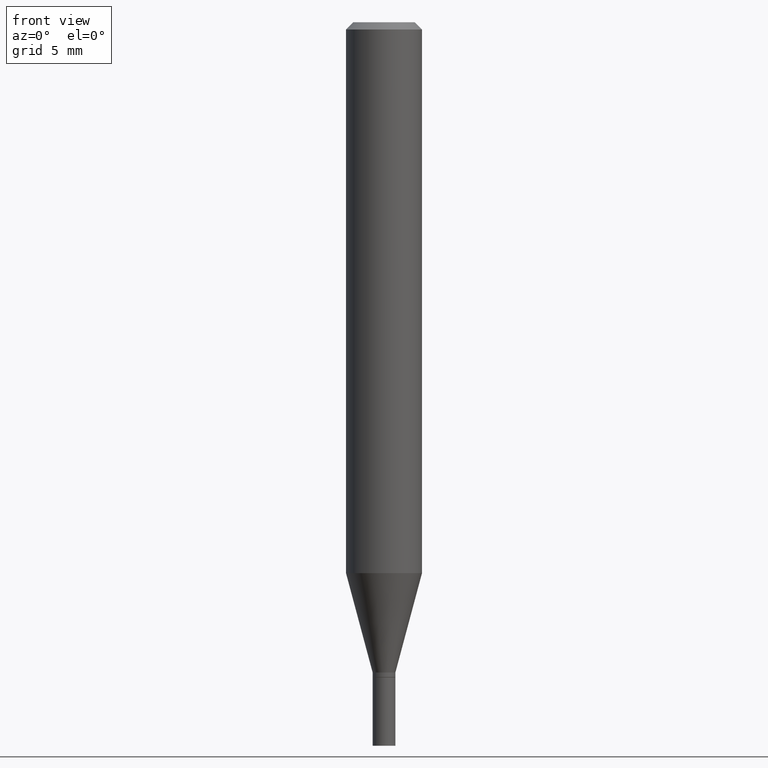
[diagram: clean part render]
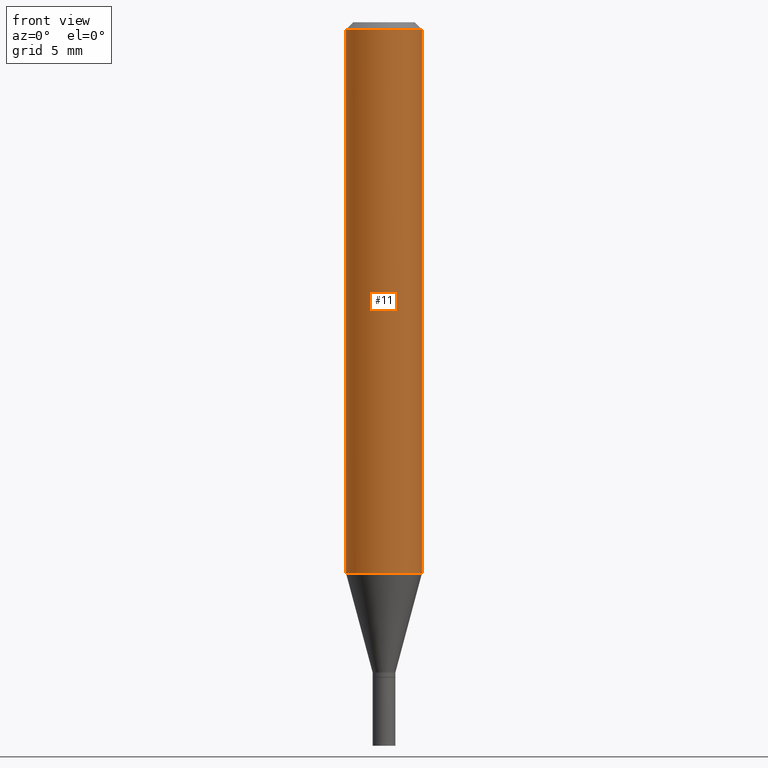
[diagram: same view with one face highlighted and labeled with its STEP entity id]
A machine part, front view. The second image highlights one B-rep face of the part: STEP entity #11.
In plain terms, the highlighted cylindrical surface (partial cylindrical patch) has radius 2.0002 mm, axis along (-0, 0, 1).
Its self-contained STEP definition (entity closure, byte-faithful):
#3 = CARTESIAN_POINT ( 'NONE',  ( -0.07875000000000000056, -3.428338666223679315E-15, -1.142177397962576890 ) ) ;
#8 = ORIENTED_EDGE ( 'NONE', *, *, #312, .F. ) ;
#11 = ADVANCED_FACE ( 'NONE', ( #330 ), #293, .T. ) ;
#62 = CIRCLE ( 'NONE', #329, 0.07875000000000000056 ) ;
#78 = VERTEX_POINT ( 'NONE', #401 ) ;
#108 = CARTESIAN_POINT ( 'NONE',  ( 3.668203209277705088E-31, -5.237222008264718399E-17, -0.01499999999999999944 ) ) ;
#111 = CIRCLE ( 'NONE', #119, 0.07875000000000000056 ) ;
#119 = AXIS2_PLACEMENT_3D ( 'NONE', #447, #453, #130 ) ;
#122 = DIRECTION ( 'NONE',  ( -2.445468806185136877E-29, 3.491481338843145188E-15, 1.000000000000000000 ) ) ;
#130 = DIRECTION ( 'NONE',  ( 1.000000000000000000, -6.982962677686268288E-15, 0.000000000000000000 ) ) ;
#143 = EDGE_CURVE ( 'NONE', #78, #359, #407, .T. ) ;
#146 = CARTESIAN_POINT ( 'NONE',  ( -0.07875000000000000056, -1.460579240947623994E-15, -0.01499999999999999944 ) ) ;
#151 = CARTESIAN_POINT ( 'NONE',  ( -0.07875000000000000056, 5.595524044110789003E-16, -3.873661383575737792E-30 ) ) ;
#160 = ORIENTED_EDGE ( 'NONE', *, *, #438, .F. ) ;
#170 = CARTESIAN_POINT ( 'NONE',  ( 0.07875000000000000056, -5.499083108677934443E-16, 3.839989210939299016E-30 ) ) ;
#172 = EDGE_LOOP ( 'NONE', ( #8, #347, #209, #160 ) ) ;
#174 = LINE ( 'NONE', #151, #289 ) ;
#192 = VECTOR ( 'NONE', #122, 39.37007874015748143 ) ;
#209 = ORIENTED_EDGE ( 'NONE', *, *, #143, .T. ) ;
#215 = CARTESIAN_POINT ( 'NONE',  ( 0.000000000000000000, 0.000000000000000000, 0.000000000000000000 ) ) ;
#246 = DIRECTION ( 'NONE',  ( -2.445468806185136877E-29, 3.491481338843145188E-15, 1.000000000000000000 ) ) ;
#262 = EDGE_CURVE ( 'NONE', #345, #78, #111, .T. ) ;
#282 = VERTEX_POINT ( 'NONE', #146 ) ;
#289 = VECTOR ( 'NONE', #246, 39.37007874015748143 ) ;
#293 = CYLINDRICAL_SURFACE ( 'NONE', #388, 0.07875000000000000056 ) ;
#297 = DIRECTION ( 'NONE',  ( -2.445468806185136597E-29, 3.491481338843145583E-15, 1.000000000000000000 ) ) ;
#312 = EDGE_CURVE ( 'NONE', #345, #282, #174, .T. ) ;
#329 = AXIS2_PLACEMENT_3D ( 'NONE', #108, #364, #466 ) ;
#330 = FACE_OUTER_BOUND ( 'NONE', #172, .T. ) ;
#345 = VERTEX_POINT ( 'NONE', #3 ) ;
#347 = ORIENTED_EDGE ( 'NONE', *, *, #262, .T. ) ;
#359 = VERTEX_POINT ( 'NONE', #429 ) ;
#364 = DIRECTION ( 'NONE',  ( -2.445468806185136597E-29, 3.491481338843145583E-15, 1.000000000000000000 ) ) ;
#370 = DIRECTION ( 'NONE',  ( 1.000000000000000000, -6.982962677686265922E-15, 4.876176775795935232E-29 ) ) ;
#388 = AXIS2_PLACEMENT_3D ( 'NONE', #215, #297, #370 ) ;
#401 = CARTESIAN_POINT ( 'NONE',  ( 0.07875000000000000056, -4.537799381502551857E-15, -1.142177397962576890 ) ) ;
#407 = LINE ( 'NONE', #170, #192 ) ;
#429 = CARTESIAN_POINT ( 'NONE',  ( 0.07875000000000000056, -6.022805309504406221E-16, -0.01499999999999999944 ) ) ;
#438 = EDGE_CURVE ( 'NONE', #282, #359, #62, .T. ) ;
#447 = CARTESIAN_POINT ( 'NONE',  ( 2.793159197847188577E-29, -3.987891070634758511E-15, -1.142177397962576890 ) ) ;
#453 = DIRECTION ( 'NONE',  ( -2.445468806185136597E-29, 3.491481338843145583E-15, 1.000000000000000000 ) ) ;
#466 = DIRECTION ( 'NONE',  ( 1.000000000000000000, -6.982962677686265922E-15, 0.000000000000000000 ) ) ;